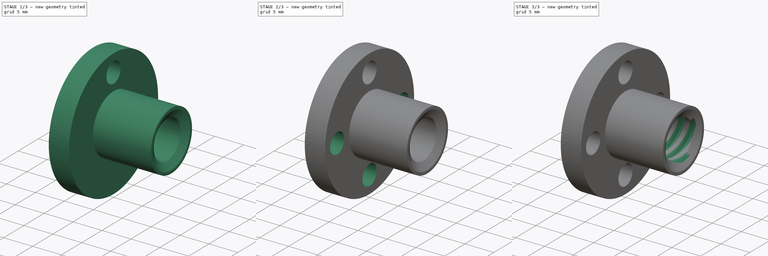
[diagram: build sequence overview — one tinted view per stage of 3, left to right]
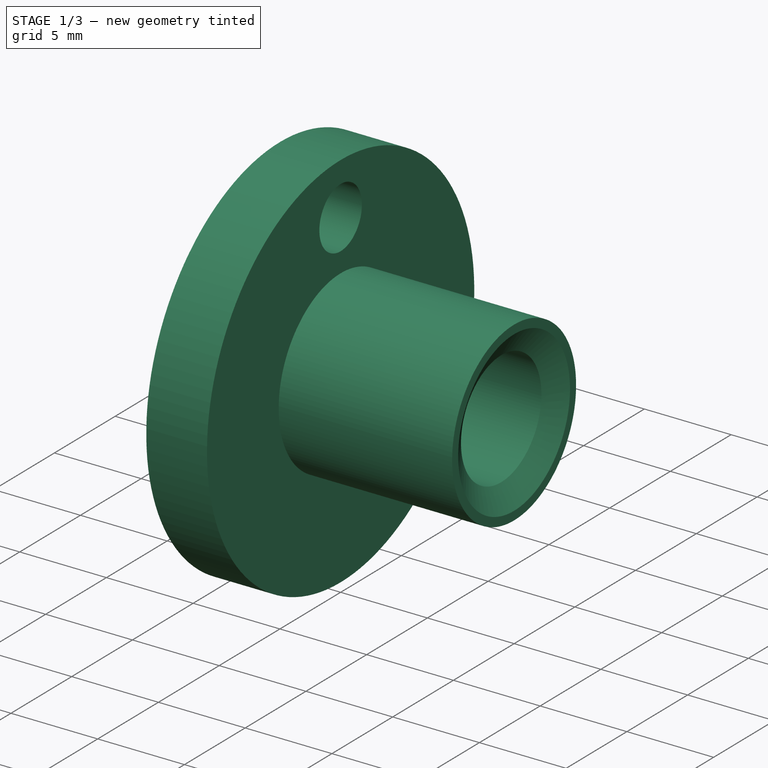
[diagram: stage 1 of 3 — iso view after this stage's code; geometry added in this stage tinted green]
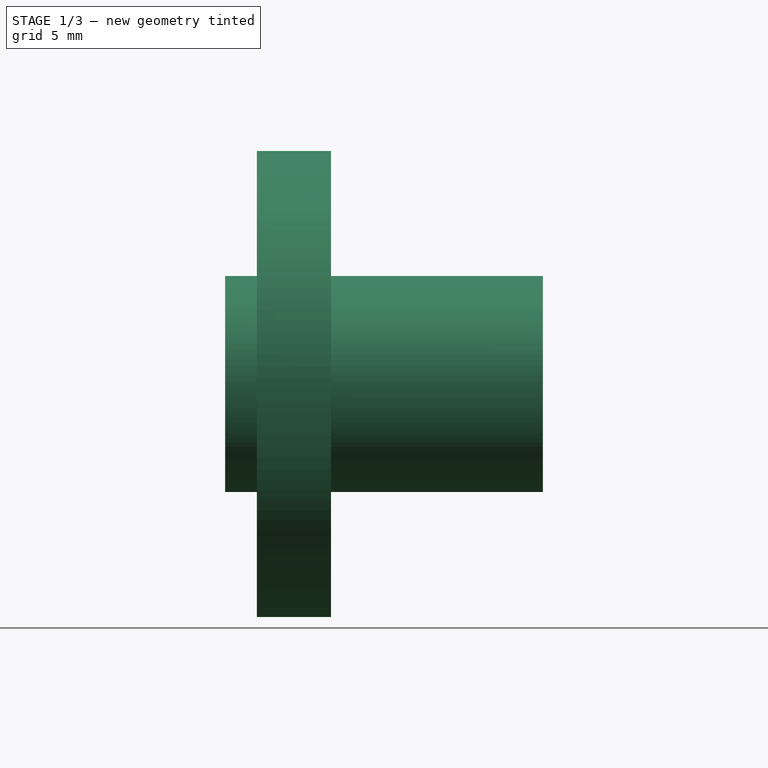
[diagram: stage 1 of 3 — front view after this stage's code; geometry added in this stage tinted green]
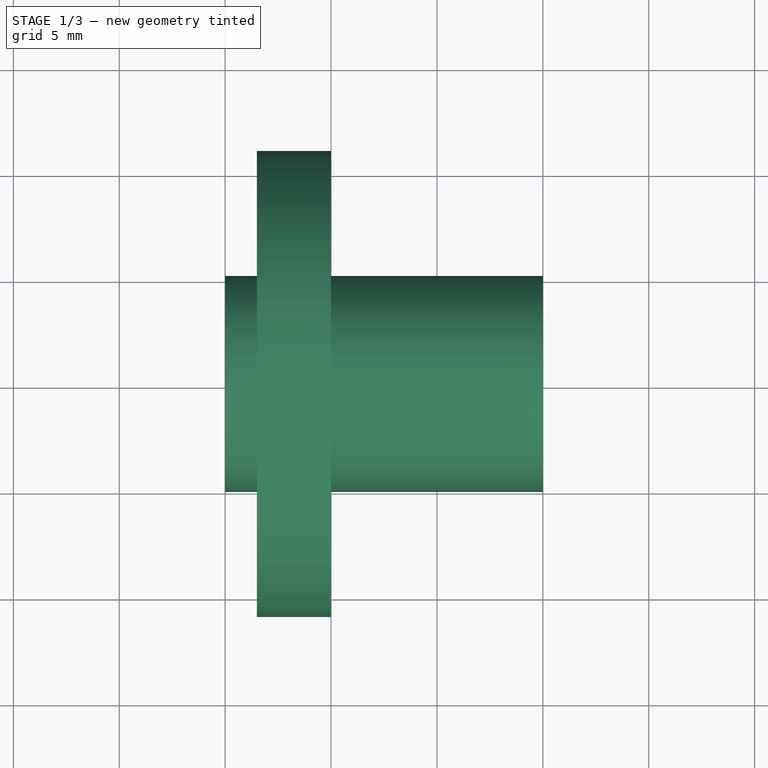
[diagram: stage 1 of 3 — top view after this stage's code; geometry added in this stage tinted green]
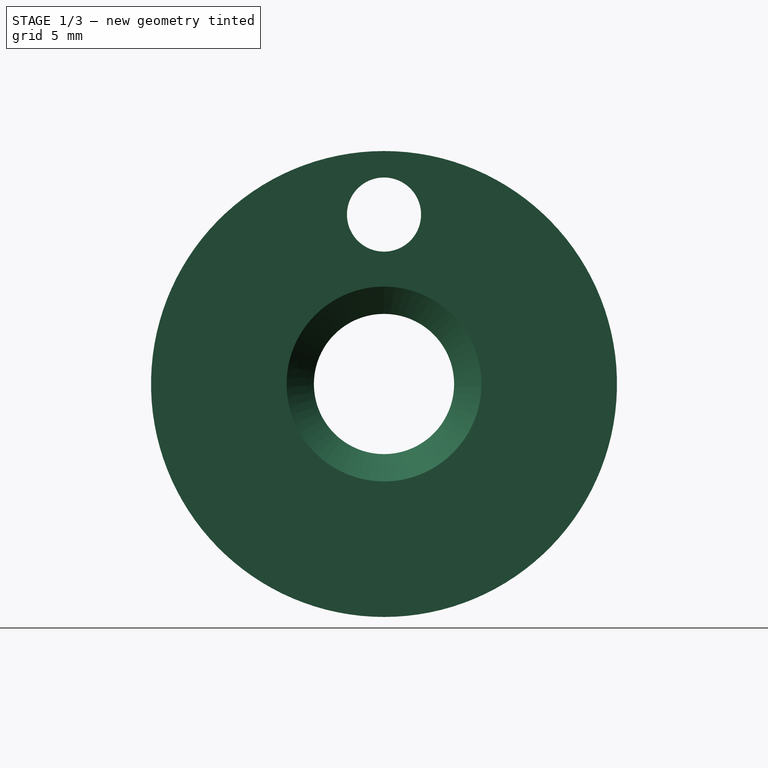
[diagram: stage 1 of 3 — right view after this stage's code; geometry added in this stage tinted green]
FCSTD DOCUMENT  (FreeCAD 0.18R16110 (Git))
Label: Trapezoidal_nut
License: CreativeCommons Attribution-ShareAlike
LicenseURL: http://creativecommons.org/licenses/by-sa/4.0/
objects: Sketcher::SketchObject×2, PartDesign::Revolution×1, PartDesign::Pocket×1, PartDesign::PolarPattern×1, Part::MultiCommon×1, Part::Feature×1, Part::Cut×1
note: 10 computed .brp shape members not serialized (recipe doc carries the construction recipe); baked Part::Feature solids carry a one-line shape summary decoded from their .brp

FEATURE [Sketcher::SketchObject] Sketch
  MapMode = 5
  Placement = pos=(0,0,0) rot=(1,0,0;1.5708rad)
  sketch-geometry (10):
    g0: LineSegment StartX=0.744782 StartY=3.31 StartZ=0 EndX=14.2552 EndY=3.31 EndZ=0
    g1: LineSegment StartX=15 StartY=5.1 StartZ=0 EndX=5 EndY=5.1 EndZ=0
    g2: LineSegment StartX=5 StartY=5.1 StartZ=0 EndX=5 EndY=11 EndZ=0
    g3: LineSegment StartX=5 StartY=11 StartZ=0 EndX=1.5 EndY=11 EndZ=0
    g4: LineSegment StartX=1.5 StartY=11 StartZ=0 EndX=1.5 EndY=5.1 EndZ=0
    g5: LineSegment StartX=1.5 StartY=5.1 StartZ=0 EndX=0 EndY=5.1 EndZ=0
    g6: LineSegment StartX=0 StartY=5.1 StartZ=0 EndX=0 EndY=4.6 EndZ=0
    g7: LineSegment StartX=0 StartY=4.6 StartZ=0 EndX=0.744782 EndY=3.31 EndZ=0
    g8: LineSegment StartX=15 StartY=5.1 StartZ=0 EndX=15 EndY=4.6 EndZ=0
    g9: LineSegment StartX=15 StartY=4.6 StartZ=0 EndX=14.2552 EndY=3.31 EndZ=0
  constraints (30):
    c: Horizontal(g0)
    c: Horizontal(g1)
    c: Coincident(g1,g2)
    c: Vertical(g2)
    c: Coincident(g2,g3)
    c: Horizontal(g3)
    c: Coincident(g3,g4)
    c: Vertical(g4)
    c: Coincident(g4,g5)
    c: PointOnObject(g5,g-2)
    c: Horizontal(g5)
    c: DistanceX(g5,g5) = 1.5
    c: DistanceX(g3,g3) = 3.5
    c: DistanceX(g1,g1) = 10
    c: DistanceY(g-1,g2) = 11
    c: DistanceY(g-1,g1) = 5.1
    c: Coincident(g5,g6)
    c: PointOnObject(g6,g-2)
    c: Coincident(g6,g7)
    c: Coincident(g7,g0)
    c: Coincident(g1,g8)
    c: Vertical(g8)
    c: Coincident(g8,g9)
    c: Coincident(g9,g0)
    c: Angle(g7,g6) = 2.61799
    c: Equal(g6,g8)
    c: Equal(g7,g9)
    c: Angle(g8,g9) = 2.61799
    c: DistanceY(g-1,g0) = 3.31
    c: DistanceY(g8,g8) = 0.5
FEATURE [PartDesign::Revolution] Revolution
  Angle = 360
  Axis = (1,0,0)
  Base = (0,0,0)
  Placement = pos=(0,0,0) rot=(1,0,0;1.5708rad)
  Profile = -> Sketch
  ReferenceAxis = -> Sketch [H_Axis]
FEATURE [Sketcher::SketchObject] Sketch002
  MapMode = 5
  Placement = pos=(5,0,0) rot=(0.707107,0,0.707107;3.14159rad)
  Support = -> [Revolution]
  sketch-geometry (1):
    g0: Circle CenterX=8 CenterY=0 CenterZ=0 NormalX=0 NormalY=0 NormalZ=1 AngleXU=0 Radius=1.75
  constraints (3):
    c: PointOnObject(g0,g-1)
    c: Radius(g0) = 1.75
    c: DistanceX(g-1,g0) = 8
FEATURE [PartDesign::Pocket] Pocket
  Length = 5
  Length2 = 100
  Placement = pos=(0,0,0) rot=(1,0,0;1.5708rad)
  Profile = -> Sketch002
  Type = 1
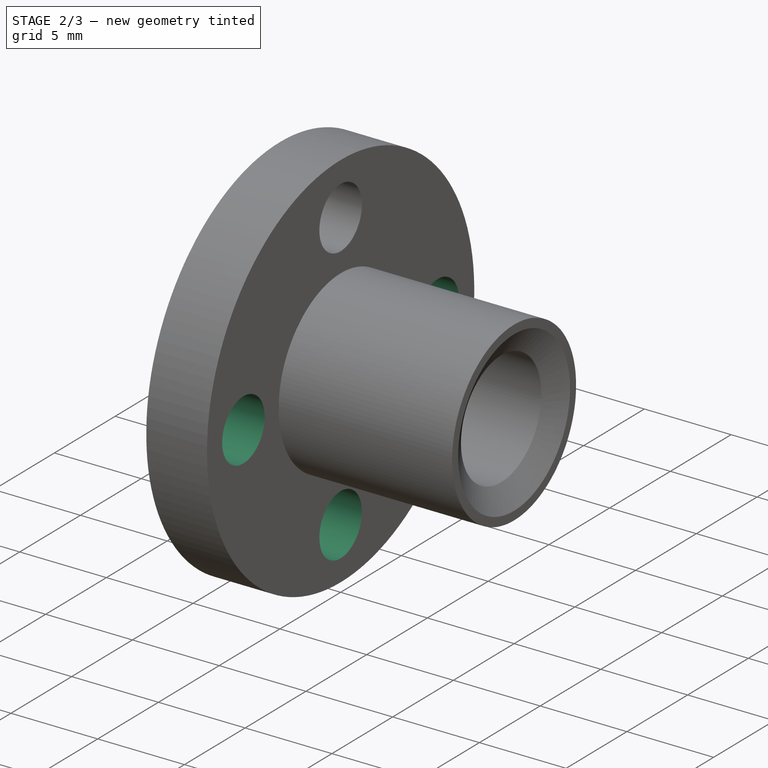
[diagram: stage 2 of 3 — iso view after this stage's code; geometry added in this stage tinted green]
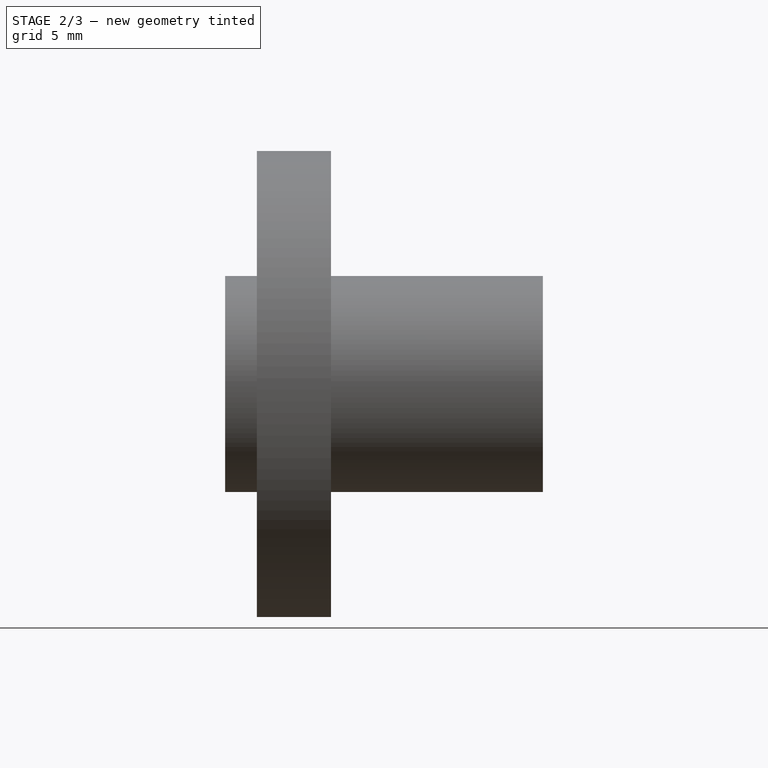
[diagram: stage 2 of 3 — front view after this stage's code; geometry added in this stage tinted green]
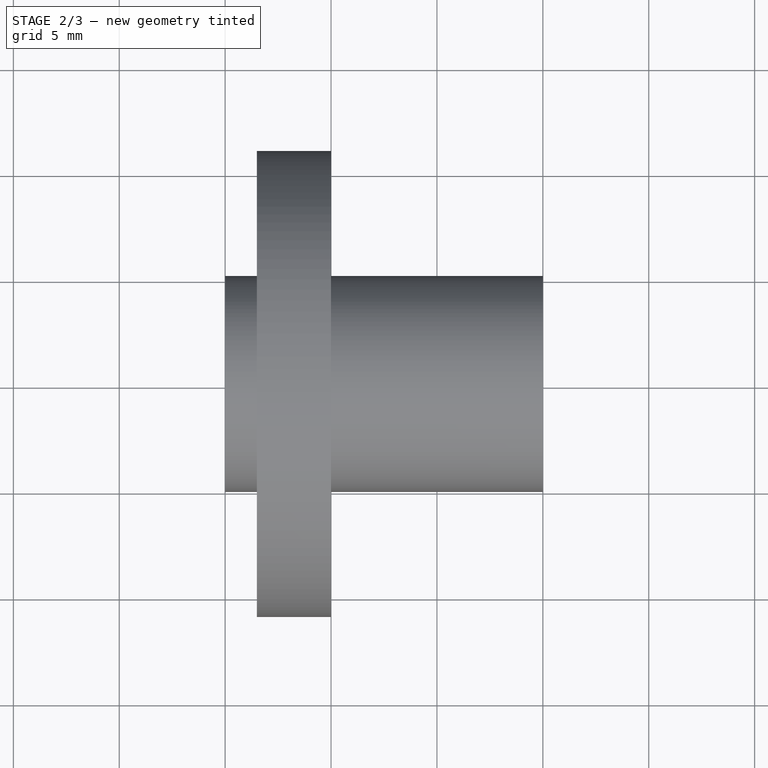
[diagram: stage 2 of 3 — top view after this stage's code; geometry added in this stage tinted green]
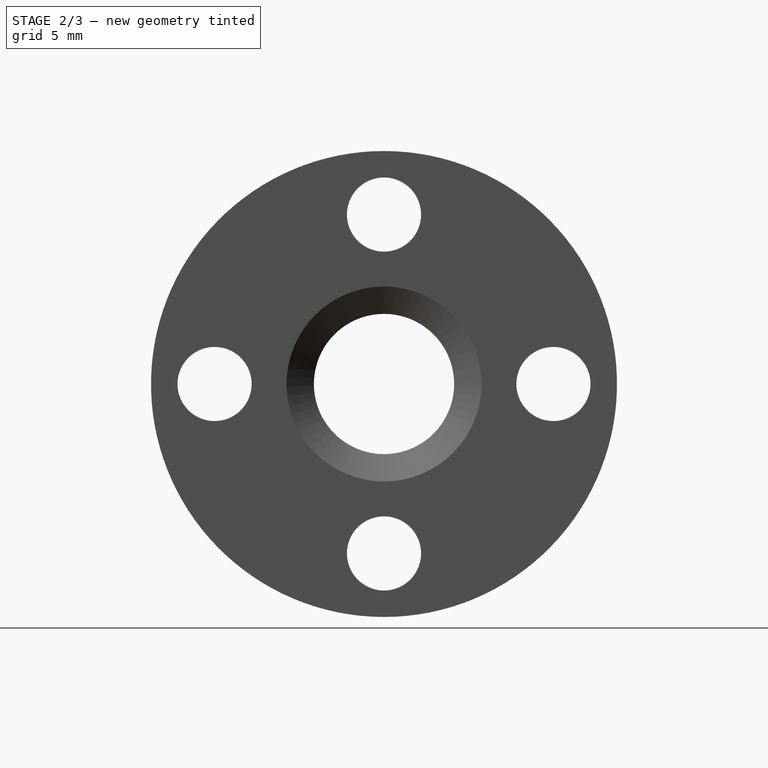
[diagram: stage 2 of 3 — right view after this stage's code; geometry added in this stage tinted green]
FEATURE [PartDesign::PolarPattern] PolarPattern
  Angle = 360
  Axis = -> Sketch002 [N_Axis]
  Occurrences = 4
  Originals = -> [Pocket]
  Placement = pos=(0,0,0) rot=(1,0,0;1.5708rad)
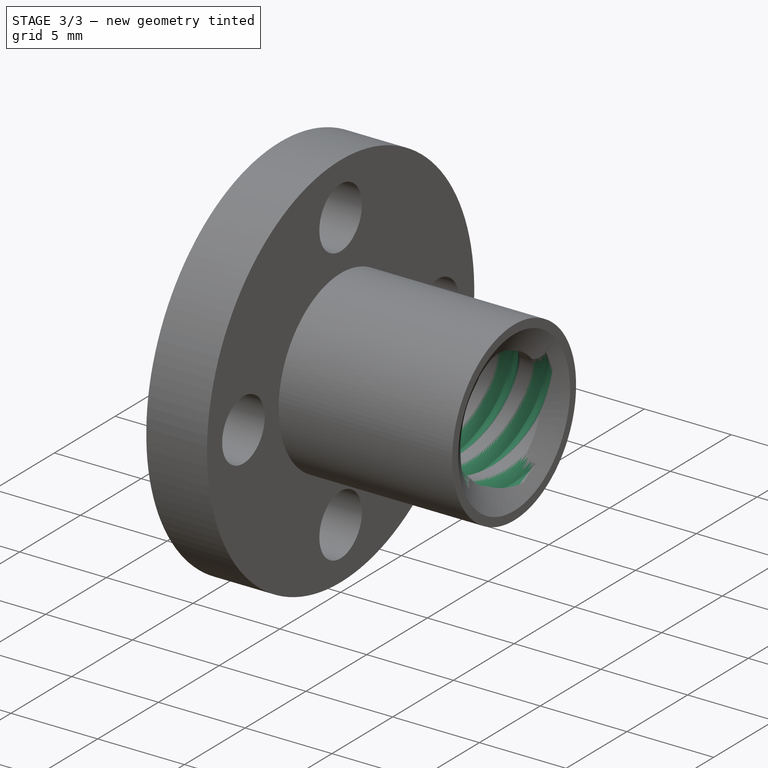
[diagram: stage 3 of 3 — iso view after this stage's code; geometry added in this stage tinted green]
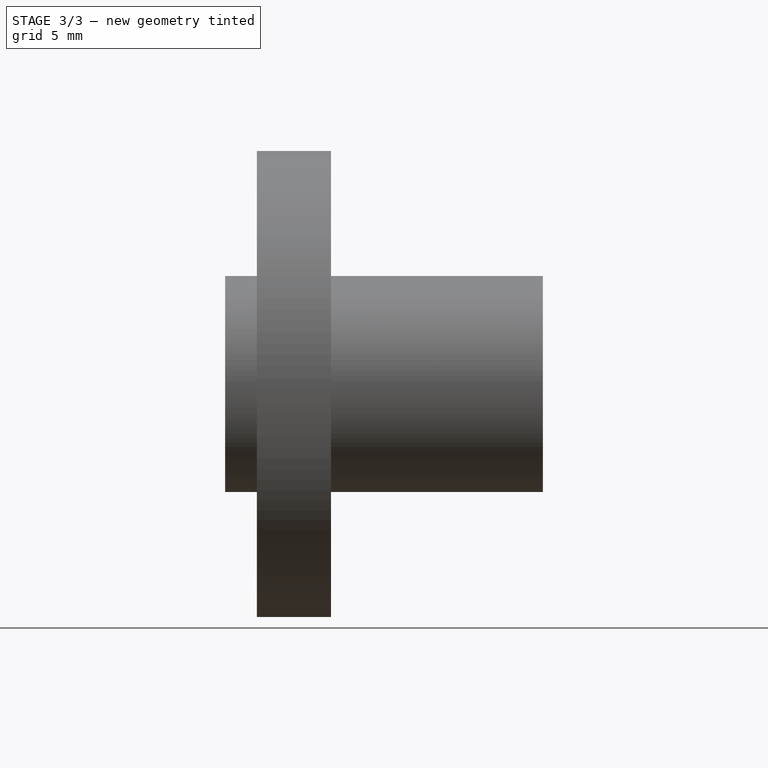
[diagram: stage 3 of 3 — front view after this stage's code; geometry added in this stage tinted green]
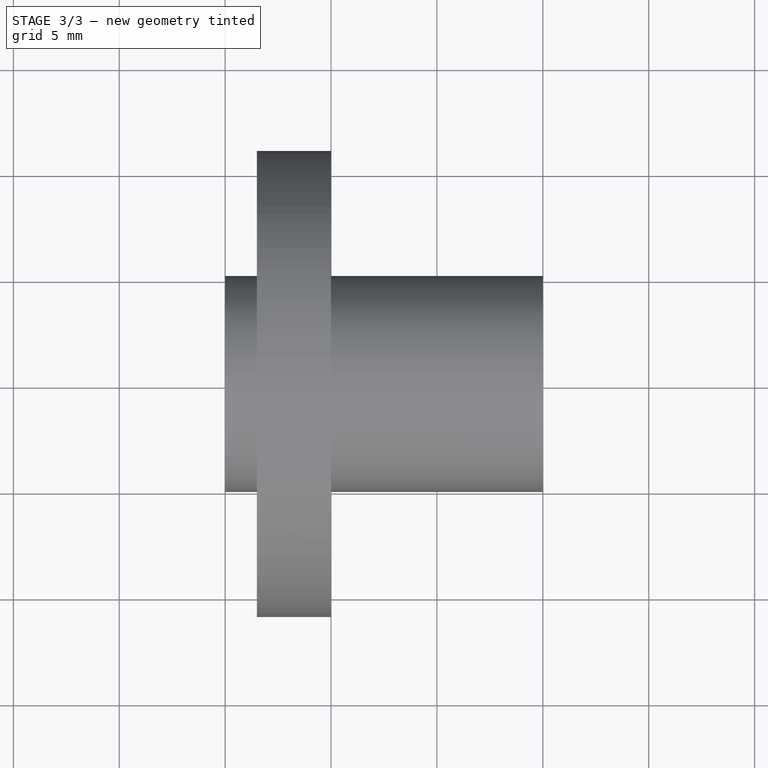
[diagram: stage 3 of 3 — top view after this stage's code; geometry added in this stage tinted green]
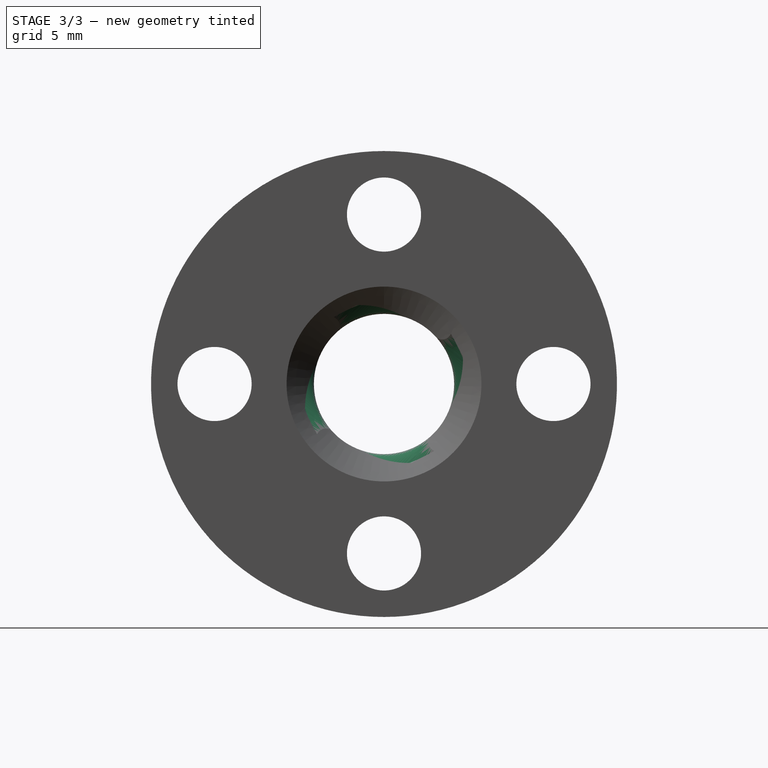
[diagram: stage 3 of 3 — right view after this stage's code; geometry added in this stage tinted green]
FEATURE [Part::MultiCommon] Common
  Refine = true
  Shapes = -> [PolarPattern,Revolution]
FEATURE [Part::Feature] Fusion001
  Placement = pos=(-14,0,0) rot=(0,1,0;1.5708rad)
  shape: bbox 140 x 13.2 x 12.26 mm, 223 faces (baked)
FEATURE [Part::Cut] Cut
  Base = -> Common
  Refine = true
  Tool = -> Fusion001
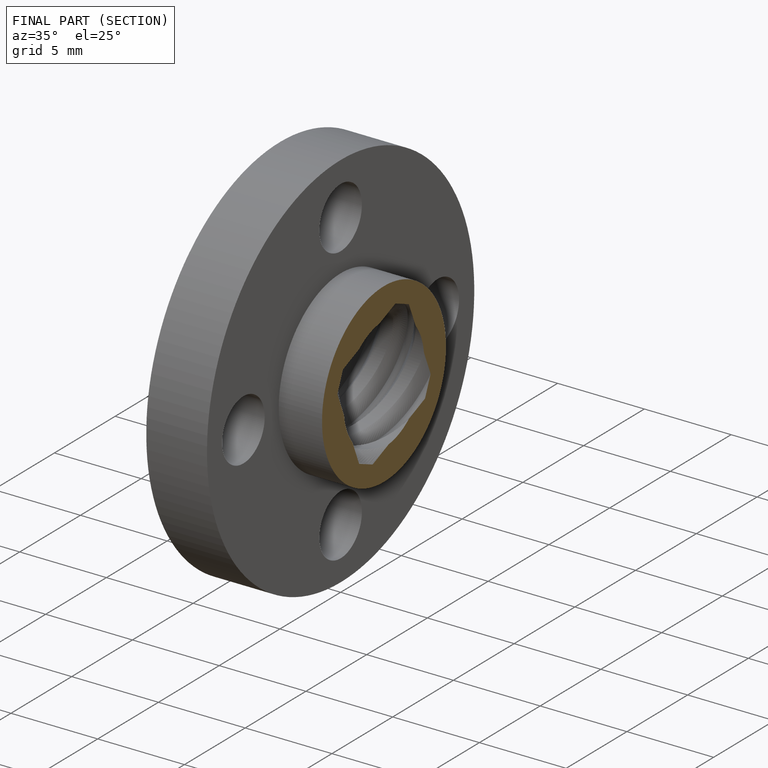
[diagram: finished part — half-section view (interior)]
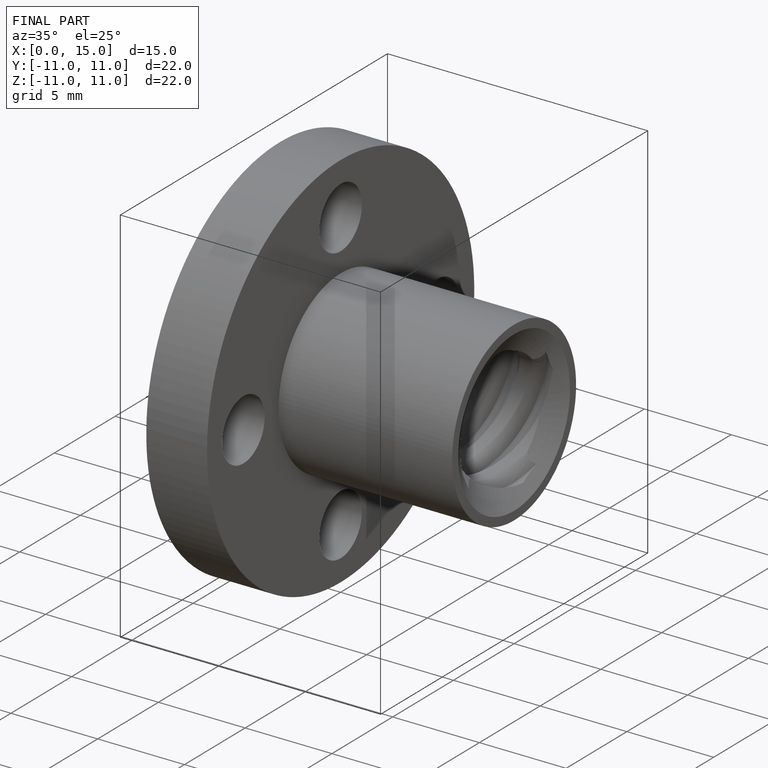
[diagram: finished part — iso view with bounding-box wireframe]
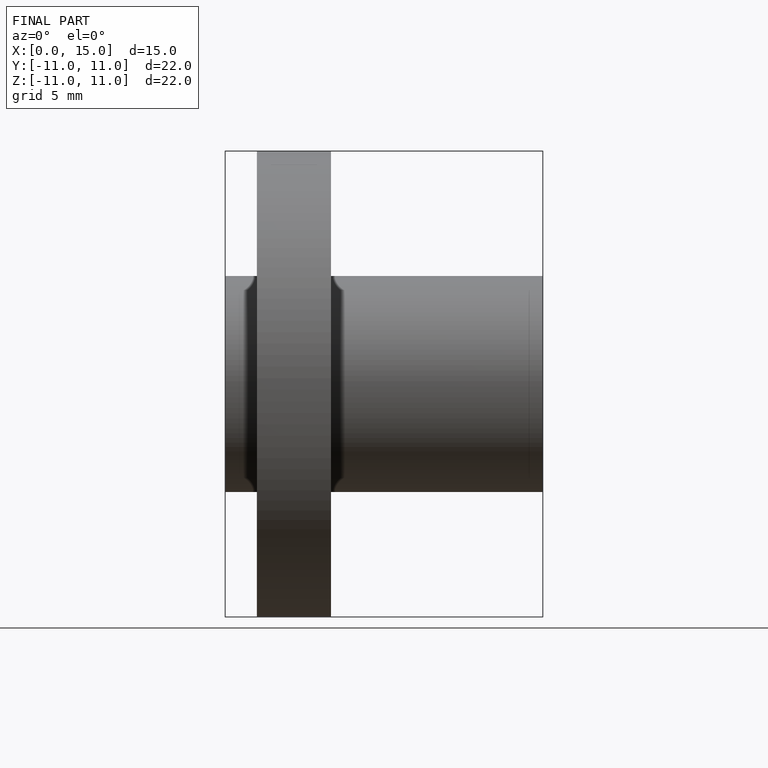
[diagram: finished part — front view with bounding-box wireframe]
